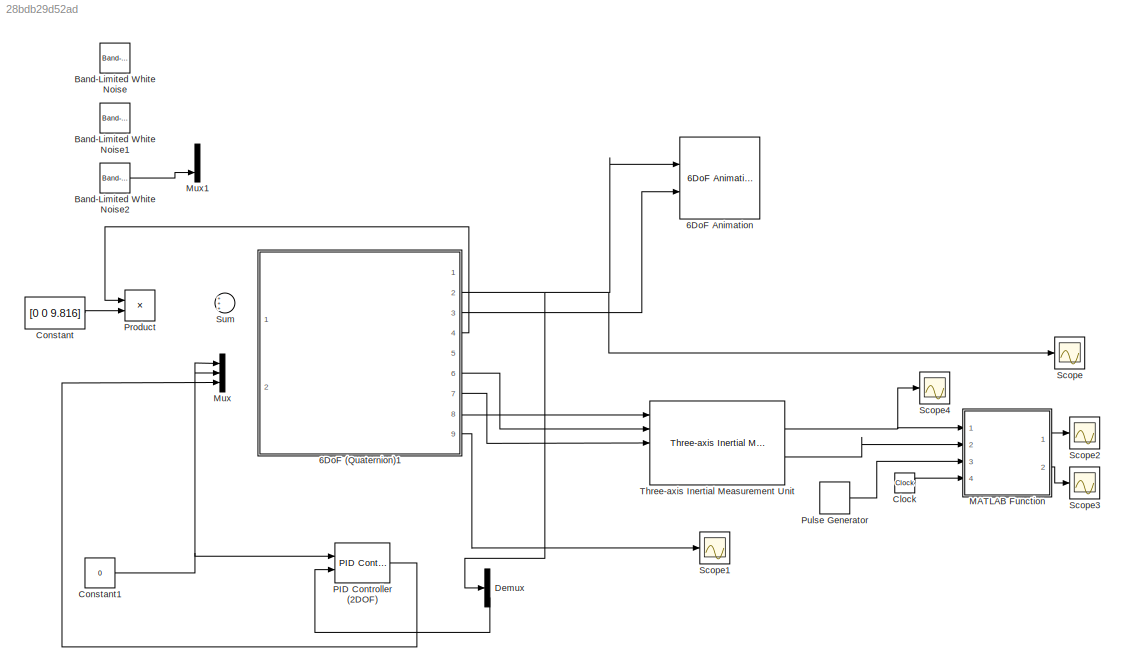
MODEL slx_28bdb29d52ad
KIND model
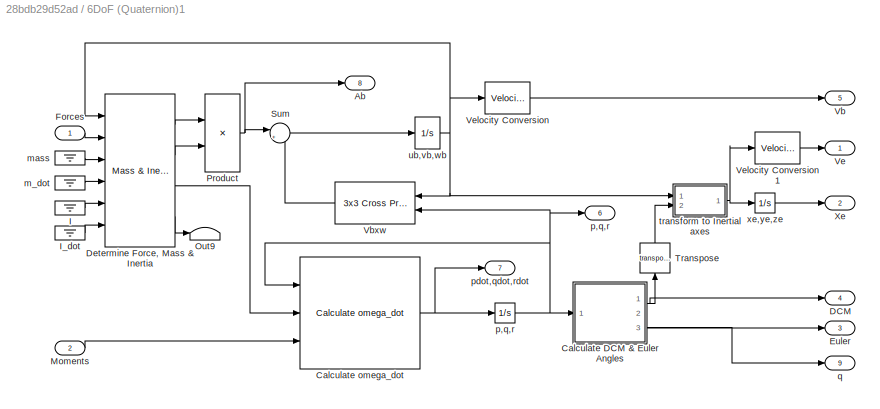
BLOCK [SubSystem] 6DoF (Quaternion)1
  FunctionWithSeparateData = off
  MaskHideContents = off
  MinAlgLoopOccurrences = off
  Opaque = off
  PermitHierarchicalResolution = ExplicitOnly
  Ports = [2, 9]
  PropExecContextOutsideSubsystem = off
  RTWSystemCode = Auto
  RequestExecContextInheritance = off
BLOCK [Outport] 6DoF (Quaternion)1/Ab
  IconDisplay = Port number
  Port = 8
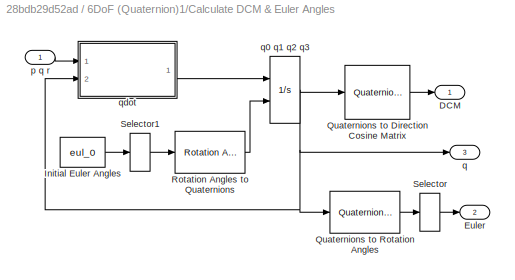
BLOCK [SubSystem] 6DoF (Quaternion)1/Calculate DCM & Euler Angles
  AncestorBlock = aerolib6dofsys/DCM & Euler Angles (Quaternion)
  FunctionWithSeparateData = off
  MaskHideContents = off
  MinAlgLoopOccurrences = off
  Opaque = off
  PermitHierarchicalResolution = ExplicitOnly
  Ports = [1, 3]
  PropExecContextOutsideSubsystem = off
  RTWSystemCode = Auto
  RequestExecContextInheritance = off
BLOCK [Outport] 6DoF (Quaternion)1/Calculate DCM & Euler Angles/DCM
  IconDisplay = Port number
BLOCK [Outport] 6DoF (Quaternion)1/Calculate DCM & Euler Angles/Euler
  IconDisplay = Port number
  Port = 2
BLOCK [Constant] 6DoF (Quaternion)1/Calculate DCM & Euler Angles/Initial Euler Angles
  Value = eul_0
BLOCK [Reference] 6DoF (Quaternion)1/Calculate DCM & Euler Angles/Quaternions to Direction Cosine Matrix  REF=aerolibtransform2/Quaternions to 
Direction Cosine Matrix
  Ports = [1, 1]
  SourceBlock = aerolibtransform2/Quaternions to \nDirection Cosine Matrix
  SourceType = Quaternion2DCM
BLOCK [Reference] 6DoF (Quaternion)1/Calculate DCM & Euler Angles/Quaternions to Rotation Angles  REF=aerolibtransform2/Quaternions to Rotation Angles
  AttributesFormatString = Rotation Order: %<rotationOrder>
  Ports = [1, 1]
  SourceBlock = aerolibtransform2/Quaternions to Rotation Angles
  SourceType = Quat2Ang
  rotationOrder = ZYX
BLOCK [Reference] 6DoF (Quaternion)1/Calculate DCM & Euler Angles/Rotation Angles to Quaternions  REF=aerolibtransform2/Rotation Angles to Quaternions
  AttributesFormatString = Rotation Order: %<rotationOrder>
  Ports = [1, 1]
  SourceBlock = aerolibtransform2/Rotation Angles to Quaternions
  SourceType = Ang2Quat
  rotationOrder = ZYX
BLOCK [Selector] 6DoF (Quaternion)1/Calculate DCM & Euler Angles/Selector
  IndexOptions = Index vector (dialog)
  Indices = [3 2 1]
  InputPortWidth = 3
  OutputSizes = 1
  Ports = [1, 1]
BLOCK [Selector] 6DoF (Quaternion)1/Calculate DCM & Euler Angles/Selector1
  IndexOptions = Index vector (dialog)
  Indices = [3 2 1]
  InputPortWidth = 3
  OutputSizes = 1
  Ports = [1, 1]
BLOCK [Inport] 6DoF (Quaternion)1/Calculate DCM & Euler Angles/p q r
  IconDisplay = Port number
BLOCK [Outport] 6DoF (Quaternion)1/Calculate DCM & Euler Angles/q
  IconDisplay = Port number
  Port = 3
BLOCK [Integrator] 6DoF (Quaternion)1/Calculate DCM & Euler Angles/q0 q1 q2 q3
  InitialCondition = [e0_0 e1_0 e2_0 e3_0]
  InitialConditionSource = external
  Ports = [2, 1]
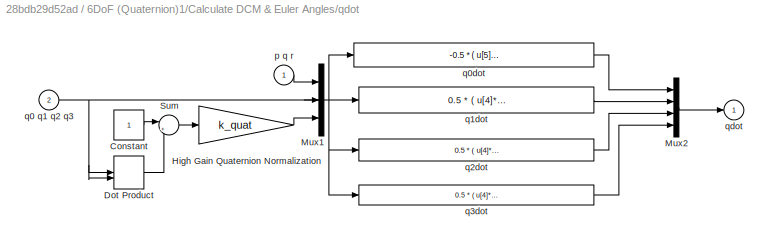
BLOCK [SubSystem] 6DoF (Quaternion)1/Calculate DCM & Euler Angles/qdot
  FunctionWithSeparateData = off
  MaskHideContents = off
  MinAlgLoopOccurrences = off
  Opaque = off
  Ports = [2, 1]
  PropExecContextOutsideSubsystem = off
  RTWSystemCode = Auto
  RequestExecContextInheritance = off
BLOCK [Constant] 6DoF (Quaternion)1/Calculate DCM & Euler Angles/qdot/Constant
BLOCK [DotProduct] 6DoF (Quaternion)1/Calculate DCM & Euler Angles/qdot/Dot Product
  InputSameDT = off
  OutDataTypeStr = Inherit: Inherit via internal rule
BLOCK [Gain] 6DoF (Quaternion)1/Calculate DCM & Euler Angles/qdot/High Gain Quaternion Normalization
  Gain = k_quat
BLOCK [Mux] 6DoF (Quaternion)1/Calculate DCM & Euler Angles/qdot/Mux1
  DisplayOption = bar
  Inputs = [3 4 1]
  Ports = [3, 1]
BLOCK [Mux] 6DoF (Quaternion)1/Calculate DCM & Euler Angles/qdot/Mux2
  DisplayOption = bar
  Ports = [4, 1]
BLOCK [Sum] 6DoF (Quaternion)1/Calculate DCM & Euler Angles/qdot/Sum
  IconShape = round
  Inputs = |+-
  Ports = [2, 1]
BLOCK [Inport] 6DoF (Quaternion)1/Calculate DCM & Euler Angles/qdot/p q r
  IconDisplay = Port number
BLOCK [Inport] 6DoF (Quaternion)1/Calculate DCM & Euler Angles/qdot/q0 q1 q2 q3
  IconDisplay = Port number
  Port = 2
BLOCK [Fcn] 6DoF (Quaternion)1/Calculate DCM & Euler Angles/qdot/q0dot
  Expr = -0.5 * ( u[5]*u[1]+u[6]*u[2]+u[7]*u[3] ) + u[8]*u[4]
BLOCK [Fcn] 6DoF (Quaternion)1/Calculate DCM & Euler Angles/qdot/q1dot
  Expr = 0.5 * ( u[4]*u[1]+u[6]*u[3]-u[7]*u[2] ) + u[8]*u[5]
BLOCK [Fcn] 6DoF (Quaternion)1/Calculate DCM & Euler Angles/qdot/q2dot
  Expr = 0.5 * ( u[4]*u[2]+u[7]*u[1]-u[5]*u[3] ) + u[8]*u[6]
BLOCK [Fcn] 6DoF (Quaternion)1/Calculate DCM & Euler Angles/qdot/q3dot
  Expr = 0.5 * ( u[4]*u[3]+u[5]*u[2]-u[6]*u[1] ) + u[8]*u[7]
BLOCK [Outport] 6DoF (Quaternion)1/Calculate DCM & Euler Angles/qdot/qdot
  IconDisplay = Port number
  InitialOutput = 0
BLOCK [Reference] 6DoF (Quaternion)1/Calculate omega_dot  REF=aerolib6dofsys/Calculate omega_dot
  Ports = [3, 1]
  SourceBlock = aerolib6dofsys/Calculate omega_dot
  SourceType = SubSystem
BLOCK [Outport] 6DoF (Quaternion)1/DCM
  IconDisplay = Port number
  Port = 4
BLOCK [Reference] 6DoF (Quaternion)1/Determine Force, Mass & Inertia  REF=aerolib6dofsys/Mass & Inertia (fixed)
  FunctionWithSeparateData = off
  GeneratePreprocessorConditionals = off
  Ports = [6, 4]
  ShowPortLabels = FromPortIcon
  SourceBlock = aerolib6dofsys/Mass & Inertia (fixed)
  SourceType = Mass & Inertia (fixed)
  SystemSampleTime = -1
BLOCK [Outport] 6DoF (Quaternion)1/Euler
  IconDisplay = Port number
  Port = 3
BLOCK [Inport] 6DoF (Quaternion)1/Forces
  IconDisplay = Port number
BLOCK [Ground] 6DoF (Quaternion)1/I
BLOCK [Ground] 6DoF (Quaternion)1/I_dot
BLOCK [Inport] 6DoF (Quaternion)1/Moments
  IconDisplay = Port number
  Port = 2
BLOCK [Terminator] 6DoF (Quaternion)1/Out9
BLOCK [Product] 6DoF (Quaternion)1/Product
  InputSameDT = off
  Inputs = */
  Ports = [2, 1]
  RndMeth = Floor
BLOCK [Sum] 6DoF (Quaternion)1/Sum
  IconShape = round
  InputSameDT = off
  Inputs = |++
  OutDataTypeStr = Inherit: Inherit via internal rule
  Ports = [2, 1]
BLOCK [Math] 6DoF (Quaternion)1/Transpose
  Operator = transpose
  Ports = [1, 1]
BLOCK [Outport] 6DoF (Quaternion)1/Vb
  IconDisplay = Port number
  Port = 5
BLOCK [Reference] 6DoF (Quaternion)1/Vbxw  REF=aerolibutil/3x3 Cross Product
  Ports = [2, 1]
  SourceBlock = aerolibutil/3x3 Cross Product
  SourceType = CrossProduct
BLOCK [Outport] 6DoF (Quaternion)1/Ve
  IconDisplay = Port number
BLOCK [Reference] 6DoF (Quaternion)1/Velocity Conversion  REF=aerolibconvert2/Velocity Conversion
  IU = m/s
  OU = m/s
  Ports = [1, 1]
  SourceBlock = aerolibconvert2/Velocity Conversion
  SourceType = Velocity Conversion
BLOCK [Reference] 6DoF (Quaternion)1/Velocity Conversion1  REF=aerolibconvert2/Velocity Conversion
  IU = m/s
  OU = m/s
  Ports = [1, 1]
  SourceBlock = aerolibconvert2/Velocity Conversion
  SourceType = Velocity Conversion
BLOCK [Outport] 6DoF (Quaternion)1/Xe
  IconDisplay = Port number
  Port = 2
BLOCK [Ground] 6DoF (Quaternion)1/m_dot
BLOCK [Ground] 6DoF (Quaternion)1/mass
BLOCK [Outport] 6DoF (Quaternion)1/p,q,r
  IconDisplay = Port number
  Port = 6
BLOCK [Integrator] 6DoF (Quaternion)1/p,q,r 
  InitialCondition = pm_0
  Ports = [1, 1]
BLOCK [Outport] 6DoF (Quaternion)1/pdot,qdot,rdot
  IconDisplay = Port number
  Port = 7
BLOCK [Outport] 6DoF (Quaternion)1/q
  IconDisplay = Port number
  Port = 9
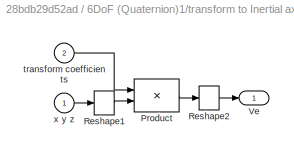
BLOCK [SubSystem] 6DoF (Quaternion)1/transform to Inertial axes 
  FunctionWithSeparateData = off
  MaskHideContents = off
  MinAlgLoopOccurrences = off
  Opaque = off
  Ports = [2, 1]
  PropExecContextOutsideSubsystem = off
  RTWSystemCode = Auto
  RequestExecContextInheritance = off
  ShowPortLabels = none
BLOCK [Product] 6DoF (Quaternion)1/transform to Inertial axes /Product
  Multiplication = Matrix(*)
  Ports = [2, 1]
  RndMeth = Floor
BLOCK [Reshape] 6DoF (Quaternion)1/transform to Inertial axes /Reshape1
  OutputDimensionality = Column vector (2-D)
  Ports = [1, 1]
BLOCK [Reshape] 6DoF (Quaternion)1/transform to Inertial axes /Reshape2
  Ports = [1, 1]
BLOCK [Outport] 6DoF (Quaternion)1/transform to Inertial axes /Ve
  IconDisplay = Port number
BLOCK [Inport] 6DoF (Quaternion)1/transform to Inertial axes /transform coefficients
  IconDisplay = Port number
  Port = 2
BLOCK [Inport] 6DoF (Quaternion)1/transform to Inertial axes /x y z
  IconDisplay = Port number
BLOCK [Integrator] 6DoF (Quaternion)1/ub,vb,wb
  InitialCondition = convvel(Vm_0,'m/s','m/s')
  Ports = [1, 1]
BLOCK [Integrator] 6DoF (Quaternion)1/xe,ye,ze
  InitialCondition = xme_0
  Ports = [1, 1]
BLOCK [Reference] 6DoF Animation  REF=aerolibanim/6DoF Animation
  Ports = [2]
  SourceBlock = aerolibanim/6DoF Animation
  SourceType = 6DoF_Animation
  u1 = [-5 5 -5 5 -5 5]
  u2 = 0.1
  u3 = 1.0
  u4 = [4000 0 -5000]
  u5 = Fixed position
  u6 = [12 10 -7]
  u7 = 35
  u8 = on
BLOCK [Reference] Band-Limited White Noise  REF=simulink/Sources/Band-Limited
White Noise
  Cov = [0.1]
  Ports = [0, 1]
  SourceBlock = simulink/Sources/Band-Limited\nWhite Noise
  SourceType = Band-Limited White Noise.
  Ts = 0.01
  VectorParams1D = on
  seed = [1339]
BLOCK [Reference] Band-Limited White Noise1  REF=simulink/Sources/Band-Limited
White Noise
  Cov = [0.1]
  Ports = [0, 1]
  SourceBlock = simulink/Sources/Band-Limited\nWhite Noise
  SourceType = Band-Limited White Noise.
  Ts = 0.01
  VectorParams1D = on
  seed = [1338]
BLOCK [Reference] Band-Limited White Noise2  REF=simulink/Sources/Band-Limited
White Noise
  Cov = [0.1]
  Ports = [0, 1]
  SourceBlock = simulink/Sources/Band-Limited\nWhite Noise
  SourceType = Band-Limited White Noise.
  Ts = 0.01
  VectorParams1D = on
  seed = [1337]
BLOCK [Clock] Clock
BLOCK [Constant] Constant
  Value = [0 0 9.816]
BLOCK [Constant] Constant1
  Value = 0
BLOCK [Demux] Demux
  DisplayOption = bar
  Outputs = 3
  Ports = [1, 3]
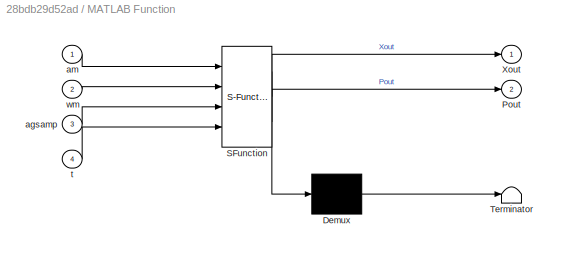
BLOCK [SubSystem] MATLAB Function
  ErrorFcn = Stateflow.Translate.translate
  FunctionWithSeparateData = off
  MaskHideContents = off
  MinAlgLoopOccurrences = off
  Opaque = off
  PermitHierarchicalResolution = ExplicitOnly
  Ports = [4, 2]
  PropExecContextOutsideSubsystem = off
  RTWSystemCode = Auto
  RequestExecContextInheritance = off
  SFBlockType = MATLAB Function
  TreatAsAtomicUnit = on
BLOCK [Demux] MATLAB Function/ Demux 
  Outputs = 1
  Ports = [1, 1]
BLOCK [S-Function] MATLAB Function/ SFunction 
  EnableBusSupport = on
  FunctionName = sf_sfun
  PortCounts = [4 3]
  Ports = [4, 3]
  Tag = Stateflow S-Function quadtestmodel 2
BLOCK [Terminator] MATLAB Function/ Terminator 
BLOCK [Outport] MATLAB Function/Pout
  IconDisplay = Port number
  Port = 2
BLOCK [Outport] MATLAB Function/Xout
  IconDisplay = Port number
BLOCK [Inport] MATLAB Function/agsamp
  IconDisplay = Port number
  Port = 3
BLOCK [Inport] MATLAB Function/am
  IconDisplay = Port number
BLOCK [Inport] MATLAB Function/t
  IconDisplay = Port number
  Port = 4
BLOCK [Inport] MATLAB Function/wm
  IconDisplay = Port number
  Port = 2
BLOCK [Mux] Mux
  DisplayOption = bar
  Inputs = 3
  Ports = [3, 1]
BLOCK [Mux] Mux1
  DisplayOption = bar
  Inputs = 3
  Ports = [3, 1]
BLOCK [Reference] PID Controller (2DOF)  REF=simulink/Continuous/PID Controller (2DOF)
  AntiWindupMode = none
  Controller = PID
  D = 10.1139382064284
  DOutDataTypeStr = Inherit: Inherit via internal rule
  DOutMax = []
  DOutMin = []
  DParamDataTypeStr = Inherit: Inherit via internal rule
  DParamMax = []
  DParamMin = []
  ExternalReset = none
  FilterContinuousStateAttributes = ''
  FilterMethod = Forward Euler
  FilterOutDataTypeStr = Inherit: Inherit via internal rule
  FilterOutMax = []
  FilterOutMin = []
  FilterRTWStateStorageClass = Auto
  FilterStateMustResolveToSignalObject = off
  Form = Parallel
  I = 0.631118206976681
  IOutDataTypeStr = Inherit: Inherit via internal rule
  IOutMax = []
  IOutMin = []
  IParamDataTypeStr = Inherit: Inherit via internal rule
  IParamMax = []
  IParamMin = []
  IgnoreLimit = off
  InitialConditionForFilter = 0
  InitialConditionForIntegrator = -12
  InitialConditionSource = internal
  IntegratorContinuousStateAttributes = ''
  IntegratorMethod = Forward Euler
  IntegratorOutDataTypeStr = Inherit: Inherit via internal rule
  IntegratorOutMax = []
  IntegratorOutMin = []
  IntegratorRTWStateStorageClass = Auto
  IntegratorStateMustResolveToSignalObject = off
  Kb = 1
  KbOutDataTypeStr = Inherit: Inherit via internal rule
  KbOutMax = []
  KbOutMin = []
  KbParamDataTypeStr = Inherit: Inherit via internal rule
  KbParamMax = []
  KbParamMin = []
  Kt = 1
  KtOutDataTypeStr = Inherit: Inherit via internal rule
  KtOutMax = []
  KtOutMin = []
  KtParamDataTypeStr = Inherit: Inherit via internal rule
  KtParamMax = []
  KtParamMin = []
  LimitOutput = off
  LinearizeAsGain = off
  LockScale = off
  LowerSaturationLimit = -inf
  N = 20.2743419407708
  NOutDataTypeStr = Inherit: Inherit via internal rule
  NOutMax = []
  NOutMin = []
  NParamDataTypeStr = Inherit: Inherit via internal rule
  NParamMax = []
  NParamMin = []
  P = 8.36590741908302
  POutDataTypeStr = Inherit: Inherit via internal rule
  POutMax = []
  POutMin = []
  PParamDataTypeStr = Inherit: Inherit via internal rule
  PParamMax = []
  PParamMin = []
  Ports = [2, 1]
  RndMeth = Floor
  SampleTime = 1
  SaturateOnIntegerOverflow = off
  SaturationOutDataTypeStr = Inherit: Same as input
  SaturationOutMax = []
  SaturationOutMin = []
  SourceBlock = simulink/Continuous/PID Controller (2DOF)
  SourceType = PID 2dof
  Sum1AccumDataTypeStr = Inherit: Inherit via internal rule
  Sum1OutDataTypeStr = Inherit: Inherit via internal rule
  Sum1OutMax = []
  Sum1OutMin = []
  Sum2AccumDataTypeStr = Inherit: Inherit via internal rule
  Sum2OutDataTypeStr = Inherit: Inherit via internal rule
  Sum2OutMax = []
  Sum2OutMin = []
  Sum3AccumDataTypeStr = Inherit: Inherit via internal rule
  Sum3OutDataTypeStr = Inherit: Inherit via internal rule
  Sum3OutMax = []
  Sum3OutMin = []
  SumAccumDataTypeStr = Inherit: Inherit via internal rule
  SumDAccumDataTypeStr = Inherit: Inherit via internal rule
  SumDOutDataTypeStr = Inherit: Inherit via internal rule
  SumDOutMax = []
  SumDOutMin = []
  SumI1AccumDataTypeStr = Inherit: Inherit via internal rule
  SumI1OutDataTypeStr = Inherit: Inherit via internal rule
  SumI1OutMax = []
  SumI1OutMin = []
  SumI2AccumDataTypeStr = Inherit: Inherit via internal rule
  SumI2OutDataTypeStr = Inherit: Inherit via internal rule
  SumI2OutMax = []
  SumI2OutMin = []
  SumI3AccumDataTypeStr = Inherit: Inherit via internal rule
  SumI3OutDataTypeStr = Inherit: Inherit via internal rule
  SumI3OutMax = []
  SumI3OutMin = []
  SumOutDataTypeStr = Inherit: Inherit via internal rule
  SumOutMax = []
  SumOutMin = []
  TimeDomain = Continuous-time
  TrackingMode = off
  UpperSaturationLimit = inf
  ZeroCross = on
  b = 1
  bOutDataTypeStr = Inherit: Inherit via internal rule
  bOutMax = []
  bOutMin = []
  bParamDataTypeStr = Inherit: Inherit via internal rule
  bParamMax = []
  bParamMin = []
  c = 1
  cOutDataTypeStr = Inherit: Inherit via internal rule
  cOutMax = []
  cOutMin = []
  cParamDataTypeStr = Inherit: Inherit via internal rule
  cParamMax = []
  cParamMin = []
BLOCK [Product] Product
  InputSameDT = off
  Multiplication = Matrix(*)
  OutDataTypeStr = Inherit: Inherit via internal rule
  Ports = [2, 1]
  SaturateOnIntegerOverflow = off
BLOCK [DiscretePulseGenerator] Pulse Generator
  Period = 0.02
  Ports = [0, 1]
  PulseType = Time based
  PulseWidth = 50
BLOCK [Scope] Scope
  DataFormat = StructureWithTime
  Floating = off
  NumInputPorts = 1
  Ports = [1]
  SampleTime = 0
  ShowLegends = off
  TimeRange = 10
BLOCK [Scope] Scope1
  DataFormat = StructureWithTime
  Floating = off
  NumInputPorts = 1
  Ports = [1]
  SampleTime = 0
  SaveName = ScopeData1
  ShowLegends = off
BLOCK [Scope] Scope2
  DataFormat = StructureWithTime
  Floating = off
  NumInputPorts = 1
  Ports = [1]
  SampleTime = 0
  SaveName = ScopeData2
  ShowLegends = off
BLOCK [Scope] Scope3
  DataFormat = StructureWithTime
  Floating = off
  NumInputPorts = 1
  Ports = [1]
  SampleTime = 0
  SaveName = ScopeData3
  ShowLegends = off
  TimeRange = 10
BLOCK [Scope] Scope4
  DataFormat = StructureWithTime
  Floating = off
  NumInputPorts = 1
  Ports = [1]
  SampleTime = 0
  SaveName = ScopeData4
  ShowLegends = off
BLOCK [Sum] Sum
  IconShape = round
  InputSameDT = off
  Inputs = +++
  OutDataTypeStr = Inherit: Inherit via internal rule
  Ports = [3, 1]
  SaturateOnIntegerOverflow = off
BLOCK [Reference] Three-axis Inertial Measurement Unit  REF=aerolibnav/Three-axis Inertial
Measurement Unit
  Ports = [5, 2]
  SourceBlock = aerolibnav/Three-axis Inertial\nMeasurement Unit
  SourceType = Three-axis Inertial Measurement Unit
  a_bias = [0 0 0]
  a_sat = [-inf  -inf  -inf  inf inf inf]
  a_sf_cc = [1 0 0; 0 1 0; 0 0 1]
  dtype_a = on
  dtype_g = on
  g_bias = [0 0 0]
  g_sat = [-inf  -inf  -inf  inf inf inf]
  g_sens = [0 0 0]
  g_sf_cc = [1 0 0; 0 1 0; 0 0 1]
  i_Ts = 0
  i_pow = [0.004 0.004 0.004 0.0001 0.0001 0.0001]
  i_rand = on
  i_seeds = [23093 23094 23095 23096 23097 23098]
  imu = [0 0 0]
  units = Metric (MKS)
  w_a = 190
  w_g = 190
  z_a = 0.707
  z_g = 0.707
NET 6DoF (Quaternion)1:2 -> 6DoF Animation:1, Demux:1, Scope:1
LINE 6DoF (Quaternion)1:3 -> 6DoF Animation:2
LINE 6DoF (Quaternion)1:4 -> Product:1
LINE 6DoF (Quaternion)1:6 -> Three-axis Inertial Measurement Unit:2
LINE 6DoF (Quaternion)1:7 -> Three-axis Inertial Measurement Unit:3
LINE 6DoF (Quaternion)1:8 -> Three-axis Inertial Measurement Unit:1
LINE 6DoF (Quaternion)1:9 -> Scope1:1
LINE Band-Limited White Noise2:1 -> Mux1:3
LINE Clock:1 -> MATLAB Function:4
NET Constant1:1 -> Mux:1, Mux:2, PID Controller (2DOF):1
LINE Constant:1 -> Product:2
LINE Demux:3 -> PID Controller (2DOF):2
LINE MATLAB Function:1 -> Scope2:1
LINE MATLAB Function:2 -> Scope3:1
LINE PID Controller (2DOF):1 -> Mux:3
LINE Pulse Generator:1 -> MATLAB Function:3
NET Three-axis Inertial Measurement Unit:1 -> MATLAB Function:1, Scope4:1
LINE Three-axis Inertial Measurement Unit:2 -> MATLAB Function:2
note: NET lines group one-source signal fan-out (src -> all destinations, sorted); 1:1 wires keep LINE
